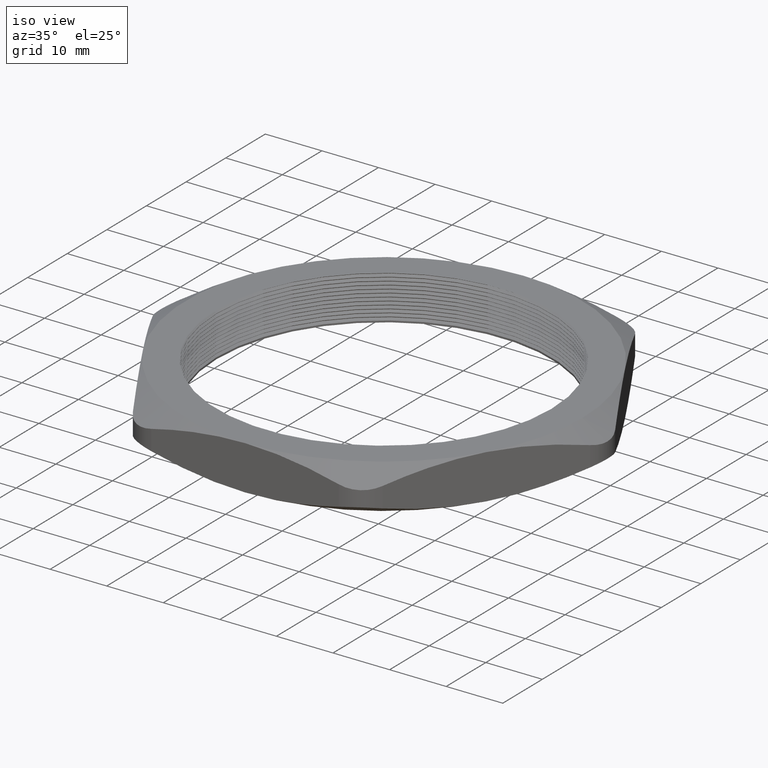
[diagram: clean part render]
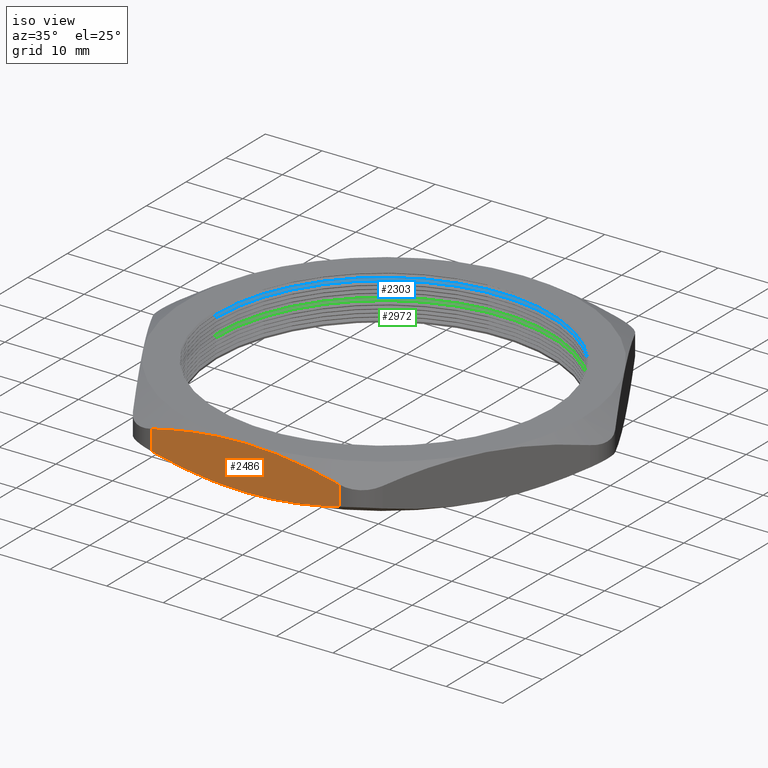
[diagram: same view with three faces highlighted in distinct colors, each labeled with its STEP entity id]
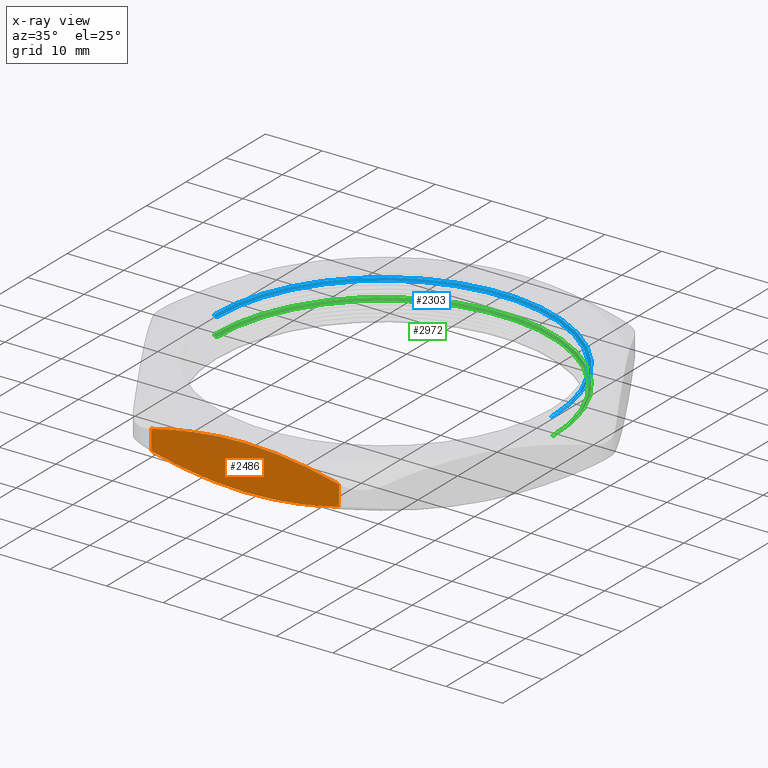
[diagram: x-ray of the same camera — body ghosted, the three highlighted faces saturated]
A machine part, iso view with three faces highlighted in distinct colors.
The next image is the same camera in x-ray (body ghosted, the three faces saturated) — at least one of them is partly hidden behind the body in this view.
Their STEP definitions:

[orange] entity #2486 — the highlighted planar face has unit normal (-0, 1, 0).
#697 = LINE ( 'NONE', #751, #750 ) ;
#724 = CARTESIAN_POINT ( 'NONE',  ( 2.365849761790802500E-016, -1.380000000000000100, 0.0000000000000000000 ) ) ;
#725 = CARTESIAN_POINT ( 'NONE',  ( -0.6524058041842778500, -1.379999999999999400, 0.3100000000000000000 ) ) ;
#726 = LINE ( 'NONE', #725, #773 ) ;
#727 = B_SPLINE_CURVE_WITH_KNOTS ( 'NONE', 3,
 ( #724, #780, #779, #778, #777, #776, #775, #774 ),
 .UNSPECIFIED., .F., .F.,
 ( 4, 2, 2, 4 ),
 ( 0.1114852307062579700, 0.1198452441045211600, 0.1240252508036527600, 0.1282052575027843600 ),
 .UNSPECIFIED. ) ;
#728 = CARTESIAN_POINT ( 'NONE',  ( 2.365849761790802500E-016, -1.380000000000000100, 0.0000000000000000000 ) ) ;
#729 = CARTESIAN_POINT ( 'NONE',  ( 0.05488473359941612600, -1.379999999999999400, -3.893016781986890500E-016 ) ) ;
#730 = CARTESIAN_POINT ( 'NONE',  ( 0.1099260653720999800, -1.379999999999999700, 0.001897141612668857500 ) ) ;
#731 = CARTESIAN_POINT ( 'NONE',  ( 0.1927219548984326600, -1.379999999999999000, 0.007576386409942491500 ) ) ;
#732 = CARTESIAN_POINT ( 'NONE',  ( 0.2203836414870294600, -1.379999999999999200, 0.009944634032073332600 ) ) ;
#733 = CARTESIAN_POINT ( 'NONE',  ( 0.2753731976033138600, -1.379999999999999200, 0.01555748888194616500 ) ) ;
#734 = CARTESIAN_POINT ( 'NONE',  ( 0.3027508877481480700, -1.379999999999999700, 0.01880446173705792300 ) ) ;
#735 = CARTESIAN_POINT ( 'NONE',  ( 0.4390883824316805800, -1.379999999999999400, 0.03711230826221560000 ) ) ;
#736 = CARTESIAN_POINT ( 'NONE',  ( 0.5463956899380740800, -1.379999999999999200, 0.05839073244957600900 ) ) ;
#737 = CARTESIAN_POINT ( 'NONE',  ( 0.6524058041842762900, -1.379999999999999200, 0.08454987016820900100 ) ) ;
#739 = B_SPLINE_CURVE_WITH_KNOTS ( 'NONE', 3,
 ( #737, #736, #735, #734, #733, #732, #731, #730, #729, #728 ),
 .UNSPECIFIED., .F., .F.,
 ( 4, 2, 2, 2, 4 ),
 ( 0.09478620208920406100, 0.1031357163977310200, 0.1052230949748627600, 0.1073104735519945000, 0.1114852307062579700 ),
 .UNSPECIFIED. ) ;
#740 = CARTESIAN_POINT ( 'NONE',  ( 0.6524058041842762900, -1.379999999999999200, 0.08454987016820900100 ) ) ;
#741 = CARTESIAN_POINT ( 'NONE',  ( 2.365849761790802500E-016, -1.380000000000000100, 0.0000000000000000000 ) ) ;
#742 = CARTESIAN_POINT ( 'NONE',  ( 0.6524058041842766300, -1.379999999999999200, 0.2254501298317909700 ) ) ;
#743 = DIRECTION ( 'NONE',  ( 0.0000000000000000000, 0.0000000000000000000, 1.000000000000000000 ) ) ;
#750 = VECTOR ( 'NONE', #743, 39.37007874015748100 ) ;
#751 = CARTESIAN_POINT ( 'NONE',  ( 0.6524058041842764100, -1.379999999999999200, 0.3100000000000000000 ) ) ;
#771 = CARTESIAN_POINT ( 'NONE',  ( -0.6524058041842836200, -1.379999999999999400, 0.08454987016821083300 ) ) ;
#772 = DIRECTION ( 'NONE',  ( 0.0000000000000000000, 0.0000000000000000000, -1.000000000000000000 ) ) ;
#773 = VECTOR ( 'NONE', #772, 39.37007874015748100 ) ;
#774 = CARTESIAN_POINT ( 'NONE',  ( -0.6524058041842836200, -1.379999999999999400, 0.08454987016821083300 ) ) ;
#775 = CARTESIAN_POINT ( 'NONE',  ( -0.5987206088999220700, -1.379999999999999400, 0.07130246989059396700 ) ) ;
#776 = CARTESIAN_POINT ( 'NONE',  ( -0.5446424934511039400, -1.379999999999999700, 0.05930139119132131500 ) ) ;
#777 = CARTESIAN_POINT ( 'NONE',  ( -0.4364618021664497500, -1.379999999999999400, 0.03838164234905892100 ) ) ;
#778 = CARTESIAN_POINT ( 'NONE',  ( -0.3822464863796540800, -1.379999999999999700, 0.02943574511210694800 ) ) ;
#779 = CARTESIAN_POINT ( 'NONE',  ( -0.2191816791453802300, -1.379999999999999000, 0.007672419723956211600 ) ) ;
#780 = CARTESIAN_POINT ( 'NONE',  ( -0.1099074967229245100, -1.379999999999999000, -4.045749494523295000E-016 ) ) ;
#998 = B_SPLINE_CURVE_WITH_KNOTS ( 'NONE', 3,
 ( #1052, #1051, #1050, #1049, #1048, #1047, #1046, #1045 ),
 .UNSPECIFIED., .F., .F.,
 ( 4, 2, 2, 4 ),
 ( 0.04061174981613697300, 0.04478876854507063400, 0.04896578727400430200, 0.05731982473187162400 ),
 .UNSPECIFIED. ) ;
#1030 = AXIS2_PLACEMENT_3D ( 'NONE', #1076, #1075, #1074 ) ;
#1031 = PLANE ( 'NONE',  #1030 ) ;
#1033 = FACE_OUTER_BOUND ( 'NONE', #2478, .T. ) ;
#1045 = CARTESIAN_POINT ( 'NONE',  ( 2.365849761790801000E-016, -1.379999999999999200, 0.3100000000000000000 ) ) ;
#1046 = CARTESIAN_POINT ( 'NONE',  ( -0.1099074967229247000, -1.379999999999999700, 0.3100000000000004400 ) ) ;
#1047 = CARTESIAN_POINT ( 'NONE',  ( -0.2191816791453805900, -1.379999999999999700, 0.3023275802760438400 ) ) ;
#1048 = CARTESIAN_POINT ( 'NONE',  ( -0.3822464863796540800, -1.379999999999999400, 0.2805642548878931100 ) ) ;
#1049 = CARTESIAN_POINT ( 'NONE',  ( -0.4364618021664495900, -1.379999999999999200, 0.2716183576509410600 ) ) ;
#1050 = CARTESIAN_POINT ( 'NONE',  ( -0.5446424934511037200, -1.379999999999999400, 0.2506986088086787200 ) ) ;
#1051 = CARTESIAN_POINT ( 'NONE',  ( -0.5987206088999215100, -1.379999999999999700, 0.2386975301094061700 ) ) ;
#1052 = CARTESIAN_POINT ( 'NONE',  ( -0.6524058041842836200, -1.379999999999999400, 0.2254501298317891400 ) ) ;
#1060 = CARTESIAN_POINT ( 'NONE',  ( 2.365849761790801000E-016, -1.379999999999999200, 0.3100000000000000000 ) ) ;
#1074 = DIRECTION ( 'NONE',  ( -1.000000000000000000, -1.714383885355653900E-016, 0.0000000000000000000 ) ) ;
#1075 = DIRECTION ( 'NONE',  ( -1.714383885355653900E-016, 1.000000000000000000, 0.0000000000000000000 ) ) ;
#1076 = CARTESIAN_POINT ( 'NONE',  ( -0.7967433714816842800, -1.379999999999999400, 0.3100000000000000000 ) ) ;
#1101 = CARTESIAN_POINT ( 'NONE',  ( 0.6524058041842766300, -1.379999999999999200, 0.2254501298317909700 ) ) ;
#1102 = CARTESIAN_POINT ( 'NONE',  ( 0.5463956899380743000, -1.379999999999999400, 0.2516092675504240600 ) ) ;
#1103 = CARTESIAN_POINT ( 'NONE',  ( 0.4390883824316810200, -1.379999999999999400, 0.2728876917377843200 ) ) ;
#1104 = CARTESIAN_POINT ( 'NONE',  ( 0.3027508877481485100, -1.379999999999999200, 0.2911955382629420900 ) ) ;
#1105 = CARTESIAN_POINT ( 'NONE',  ( 0.2753731976033141300, -1.379999999999999400, 0.2944425111180538100 ) ) ;
#1106 = CARTESIAN_POINT ( 'NONE',  ( 0.2203836414870298500, -1.379999999999999200, 0.3000553659679265900 ) ) ;
#1107 = CARTESIAN_POINT ( 'NONE',  ( 0.1927219548984325500, -1.379999999999999400, 0.3024236135900574800 ) ) ;
#1108 = CARTESIAN_POINT ( 'NONE',  ( 0.1099260653720996300, -1.379999999999999200, 0.3081028583873310900 ) ) ;
#1109 = CARTESIAN_POINT ( 'NONE',  ( 0.05488473359941591800, -1.379999999999999400, 0.3100000000000003300 ) ) ;
#1110 = CARTESIAN_POINT ( 'NONE',  ( 2.365849761790801000E-016, -1.379999999999999200, 0.3100000000000000000 ) ) ;
#1111 = CARTESIAN_POINT ( 'NONE',  ( -0.6524058041842836200, -1.379999999999999400, 0.2254501298317891400 ) ) ;
#1112 = B_SPLINE_CURVE_WITH_KNOTS ( 'NONE', 3,
 ( #1110, #1109, #1108, #1107, #1106, #1105, #1104, #1103, #1102, #1101 ),
 .UNSPECIFIED., .F., .F.,
 ( 4, 2, 2, 2, 4 ),
 ( 0.05731982473187162400, 0.06149159766843920900, 0.06357748413672299800, 0.06566337060500679300, 0.07400691647814194900 ),
 .UNSPECIFIED. ) ;
#2351 = EDGE_CURVE ( 'NONE', #2355, #2352, #697, .T. ) ;
#2352 = VERTEX_POINT ( 'NONE', #742 ) ;
#2353 = ORIENTED_EDGE ( 'NONE', *, *, #2351, .T. ) ;
#2354 = VERTEX_POINT ( 'NONE', #741 ) ;
#2355 = VERTEX_POINT ( 'NONE', #740 ) ;
#2357 = ORIENTED_EDGE ( 'NONE', *, *, #2360, .F. ) ;
#2358 = EDGE_CURVE ( 'NONE', #2355, #2354, #739, .T. ) ;
#2360 = EDGE_CURVE ( 'NONE', #2354, #2363, #727, .T. ) ;
#2362 = EDGE_CURVE ( 'NONE', #2496, #2363, #726, .T. ) ;
#2363 = VERTEX_POINT ( 'NONE', #771 ) ;
#2464 = ORIENTED_EDGE ( 'NONE', *, *, #2362, .T. ) ;
#2475 = ORIENTED_EDGE ( 'NONE', *, *, #2476, .F. ) ;
#2476 = EDGE_CURVE ( 'NONE', #2496, #2495, #998, .T. ) ;
#2478 = EDGE_LOOP ( 'NONE', ( #2479, #2353, #2493, #2475, #2464, #2357 ) ) ;
#2479 = ORIENTED_EDGE ( 'NONE', *, *, #2358, .F. ) ;
#2486 = ADVANCED_FACE ( 'NONE', ( #1033 ), #1031, .F. ) ;
#2493 = ORIENTED_EDGE ( 'NONE', *, *, #2494, .F. ) ;
#2494 = EDGE_CURVE ( 'NONE', #2495, #2352, #1112, .T. ) ;
#2495 = VERTEX_POINT ( 'NONE', #1060 ) ;
#2496 = VERTEX_POINT ( 'NONE', #1111 ) ;

[blue] entity #2303 — the highlighted conical surface has half-angle 60 deg.
#43 = EDGE_CURVE ( 'NONE', #2943, #2925, #103, .T. ) ;
#54 = EDGE_CURVE ( 'NONE', #2942, #55, #143, .T. ) ;
#55 = VERTEX_POINT ( 'NONE', #139 ) ;
#100 = DIRECTION ( 'NONE',  ( 0.8660254037844353800, 0.0000000000000000000, 0.5000000000000056600 ) ) ;
#101 = VECTOR ( 'NONE', #100, 39.37007874015748100 ) ;
#102 = CARTESIAN_POINT ( 'NONE',  ( 1.165000000000000000, 0.0000000000000000000, 0.2619059892324149300 ) ) ;
#103 = LINE ( 'NONE', #102, #101 ) ;
#139 = CARTESIAN_POINT ( 'NONE',  ( -1.185000000000000100, 0.0000000000000000000, 0.2734529946162076500 ) ) ;
#140 = DIRECTION ( 'NONE',  ( -0.8660254037844353800, 1.060575238724902800E-016, 0.5000000000000056600 ) ) ;
#141 = VECTOR ( 'NONE', #140, 39.37007874015748100 ) ;
#142 = CARTESIAN_POINT ( 'NONE',  ( -1.165000000000000000, 1.426713521006666400E-016, 0.2619059892324149300 ) ) ;
#143 = LINE ( 'NONE', #142, #141 ) ;
#634 = DIRECTION ( 'NONE',  ( 1.000000000000000000, 0.0000000000000000000, 0.0000000000000000000 ) ) ;
#635 = DIRECTION ( 'NONE',  ( 0.0000000000000000000, 0.0000000000000000000, 1.000000000000000000 ) ) ;
#636 = CARTESIAN_POINT ( 'NONE',  ( 0.0000000000000000000, 0.0000000000000000000, 0.2619059892324149300 ) ) ;
#637 = AXIS2_PLACEMENT_3D ( 'NONE', #636, #635, #634 ) ;
#639 = CONICAL_SURFACE ( 'NONE', #637, 1.165000000000000000, 1.047197551196591200 ) ;
#640 = FACE_OUTER_BOUND ( 'NONE', #2272, .T. ) ;
#641 = DIRECTION ( 'NONE',  ( 1.000000000000000000, 0.0000000000000000000, 0.0000000000000000000 ) ) ;
#642 = DIRECTION ( 'NONE',  ( 0.0000000000000000000, 0.0000000000000000000, 1.000000000000000000 ) ) ;
#643 = AXIS2_PLACEMENT_3D ( 'NONE', #648, #642, #641 ) ;
#644 = CIRCLE ( 'NONE', #643, 1.185000000000000100 ) ;
#648 = CARTESIAN_POINT ( 'NONE',  ( 0.0000000000000000000, 0.0000000000000000000, 0.2734529946162076500 ) ) ;
#1354 = DIRECTION ( 'NONE',  ( 1.000000000000000000, 0.0000000000000000000, 0.0000000000000000000 ) ) ;
#1355 = DIRECTION ( 'NONE',  ( 0.0000000000000000000, 0.0000000000000000000, 1.000000000000000000 ) ) ;
#1356 = CARTESIAN_POINT ( 'NONE',  ( 0.0000000000000000000, 0.0000000000000000000, 0.2619059892324149300 ) ) ;
#1357 = AXIS2_PLACEMENT_3D ( 'NONE', #1356, #1355, #1354 ) ;
#1358 = CIRCLE ( 'NONE', #1357, 1.165000000000000000 ) ;
#1918 = CARTESIAN_POINT ( 'NONE',  ( 1.185000000000000100, 1.451206456989613700E-016, 0.2734529946162076500 ) ) ;
#1954 = CARTESIAN_POINT ( 'NONE',  ( 1.165000000000000000, 1.426713521006666400E-016, 0.2619059892324149300 ) ) ;
#1955 = CARTESIAN_POINT ( 'NONE',  ( -1.165000000000000000, 0.0000000000000000000, 0.2619059892324149300 ) ) ;
#2272 = EDGE_LOOP ( 'NONE', ( #2304, #2305, #2306, #2307 ) ) ;
#2302 = EDGE_CURVE ( 'NONE', #2925, #55, #644, .T. ) ;
#2303 = ADVANCED_FACE ( 'NONE', ( #640 ), #639, .F. ) ;
#2304 = ORIENTED_EDGE ( 'NONE', *, *, #54, .F. ) ;
#2305 = ORIENTED_EDGE ( 'NONE', *, *, #2618, .F. ) ;
#2306 = ORIENTED_EDGE ( 'NONE', *, *, #43, .T. ) ;
#2307 = ORIENTED_EDGE ( 'NONE', *, *, #2302, .T. ) ;
#2618 = EDGE_CURVE ( 'NONE', #2943, #2942, #1358, .T. ) ;
#2925 = VERTEX_POINT ( 'NONE', #1918 ) ;
#2942 = VERTEX_POINT ( 'NONE', #1955 ) ;
#2943 = VERTEX_POINT ( 'NONE', #1954 ) ;

[green] entity #2972 — the highlighted conical surface has half-angle 60 deg.
#1117 = CIRCLE ( 'NONE', #1171, 1.165000000000000000 ) ;
#1168 = DIRECTION ( 'NONE',  ( 1.000000000000000000, 0.0000000000000000000, 0.0000000000000000000 ) ) ;
#1169 = DIRECTION ( 'NONE',  ( 0.0000000000000000000, 0.0000000000000000000, 1.000000000000000000 ) ) ;
#1170 = CARTESIAN_POINT ( 'NONE',  ( 0.0000000000000000000, 0.0000000000000000000, 0.1369059892324149300 ) ) ;
#1171 = AXIS2_PLACEMENT_3D ( 'NONE', #1170, #1169, #1168 ) ;
#1591 = DIRECTION ( 'NONE',  ( 0.8660254037844353800, 0.0000000000000000000, 0.5000000000000056600 ) ) ;
#1592 = VECTOR ( 'NONE', #1591, 39.37007874015748100 ) ;
#1593 = CARTESIAN_POINT ( 'NONE',  ( 1.165000000000000000, 0.0000000000000000000, 0.1369059892324149300 ) ) ;
#1599 = LINE ( 'NONE', #1593, #1592 ) ;
#1687 = CARTESIAN_POINT ( 'NONE',  ( 1.185000000000000100, 1.451206456989613700E-016, 0.1484529946162076500 ) ) ;
#1715 = DIRECTION ( 'NONE',  ( -0.8660254037844353800, 1.060575238724902800E-016, 0.5000000000000056600 ) ) ;
#1716 = VECTOR ( 'NONE', #1715, 39.37007874015748100 ) ;
#1717 = CARTESIAN_POINT ( 'NONE',  ( -1.165000000000000000, 1.426713521006666400E-016, 0.1369059892324149300 ) ) ;
#1723 = LINE ( 'NONE', #1717, #1716 ) ;
#1741 = CARTESIAN_POINT ( 'NONE',  ( 1.165000000000000000, 1.426713521006666400E-016, 0.1369059892324149300 ) ) ;
#1742 = CARTESIAN_POINT ( 'NONE',  ( -1.165000000000000000, 0.0000000000000000000, 0.1369059892324149300 ) ) ;
#1892 = CARTESIAN_POINT ( 'NONE',  ( -1.185000000000000100, 0.0000000000000000000, 0.1484529946162076500 ) ) ;
#1962 = DIRECTION ( 'NONE',  ( 1.000000000000000000, 0.0000000000000000000, 0.0000000000000000000 ) ) ;
#1963 = DIRECTION ( 'NONE',  ( 0.0000000000000000000, 0.0000000000000000000, 1.000000000000000000 ) ) ;
#1964 = AXIS2_PLACEMENT_3D ( 'NONE', #1969, #1963, #1962 ) ;
#1965 = CIRCLE ( 'NONE', #1964, 1.185000000000000100 ) ;
#1966 = DIRECTION ( 'NONE',  ( 1.000000000000000000, 0.0000000000000000000, 0.0000000000000000000 ) ) ;
#1967 = DIRECTION ( 'NONE',  ( 0.0000000000000000000, 0.0000000000000000000, 1.000000000000000000 ) ) ;
#1968 = AXIS2_PLACEMENT_3D ( 'NONE', #1975, #1967, #1966 ) ;
#1969 = CARTESIAN_POINT ( 'NONE',  ( 0.0000000000000000000, 0.0000000000000000000, 0.1484529946162076500 ) ) ;
#1970 = CONICAL_SURFACE ( 'NONE', #1968, 1.165000000000000000, 1.047197551196591200 ) ;
#1971 = FACE_OUTER_BOUND ( 'NONE', #2974, .T. ) ;
#1975 = CARTESIAN_POINT ( 'NONE',  ( 0.0000000000000000000, 0.0000000000000000000, 0.1369059892324149300 ) ) ;
#2516 = EDGE_CURVE ( 'NONE', #2863, #2862, #1117, .T. ) ;
#2601 = ORIENTED_EDGE ( 'NONE', *, *, #2780, .T. ) ;
#2780 = EDGE_CURVE ( 'NONE', #2863, #2821, #1599, .T. ) ;
#2821 = VERTEX_POINT ( 'NONE', #1687 ) ;
#2843 = EDGE_CURVE ( 'NONE', #2862, #2904, #1723, .T. ) ;
#2862 = VERTEX_POINT ( 'NONE', #1742 ) ;
#2863 = VERTEX_POINT ( 'NONE', #1741 ) ;
#2904 = VERTEX_POINT ( 'NONE', #1892 ) ;
#2967 = ORIENTED_EDGE ( 'NONE', *, *, #2973, .T. ) ;
#2971 = ORIENTED_EDGE ( 'NONE', *, *, #2516, .F. ) ;
#2972 = ADVANCED_FACE ( 'NONE', ( #1971 ), #1970, .F. ) ;
#2973 = EDGE_CURVE ( 'NONE', #2821, #2904, #1965, .T. ) ;
#2974 = EDGE_LOOP ( 'NONE', ( #2975, #2971, #2601, #2967 ) ) ;
#2975 = ORIENTED_EDGE ( 'NONE', *, *, #2843, .F. ) ;